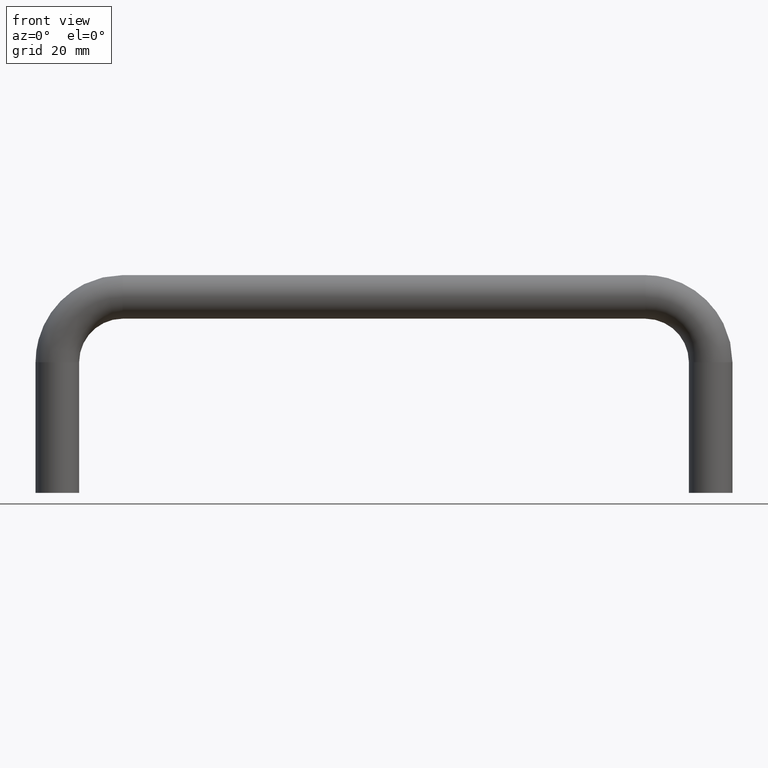
[diagram: clean part render]
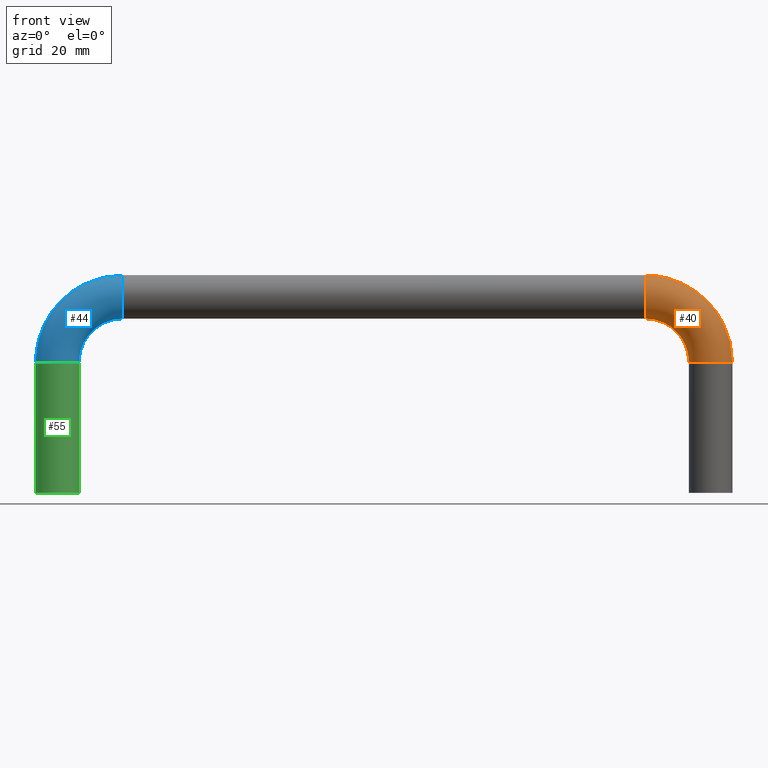
[diagram: same view with three faces highlighted in distinct colors, each labeled with its STEP entity id]
A machine part, front view with three faces highlighted in distinct colors.
Their STEP definitions:

[orange] entity #40 — the highlighted face is a freeform B-spline surface patch.
#40=ADVANCED_FACE('',(#59),#58,.T.);
#58=( BOUNDED_SURFACE() B_SPLINE_SURFACE( 3,3,((#240,#241,#242,#243,#244,#245,#246),(#247,#248,#249,#250,#251,#252,#253),(#254,#255,#256,#257,#258,#259,#260),(#261,#262,#263,#264,#265,#266,#267),(#268,#269,#270,#271,#272,#273,#274),(#275,#276,#277,#278,#279,#280,#281),(#282,#283,#284,#285,#286,#287,#288)), .UNSPECIFIED.,.F.,.F.,.F.) B_SPLINE_SURFACE_WITH_KNOTS((4,1,1,1,4),(4,1,1,1,4),(0.00000000000E+00,2.50000000000E-01,5.00000000000E-01,7.50000000000E-01,1.00000000000E+00),(0.00000000000E+00,2.49559115838E-01,5.00000000000E-01,7.50440884162E-01,1.00000000000E+00), .UNSPECIFIED. ) GEOMETRIC_REPRESENTATION_ITEM() RATIONAL_B_SPLINE_SURFACE(((1.00000000000E+00,1.00000000000E+00,1.00000000000E+00,1.00000000000E+00,1.00000000000E+00,1.00000000000E+00,1.00000000000E+00),(1.00000000000E+00,1.00000000000E+00,1.00000000000E+00,1.00000000000E+00,1.00000000000E+00,1.00000000000E+00,1.00000000000E+00),(1.00000000000E+00,1.00000000000E+00,1.00000000000E+00,1.00000000000E+00,1.00000000000E+00,1.00000000000E+00,1.00000000000E+00),(1.00000000000E+00,1.00000000000E+00,1.00000000000E+00,1.00000000000E+00,1.00000000000E+00,1.00000000000E+00,1.00000000000E+00),(1.00000000000E+00,1.00000000000E+00,1.00000000000E+00,1.00000000000E+00,1.00000000000E+00,1.00000000000E+00,1.00000000000E+00),(1.00000000000E+00,1.00000000000E+00,1.00000000000E+00,1.00000000000E+00,1.00000000000E+00,1.00000000000E+00,1.00000000000E+00),(1.00000000000E+00,1.00000000000E+00,1.00000000000E+00,1.00000000000E+00,1.00000000000E+00,1.00000000000E+00,1.00000000000E+00))) REPRESENTATION_ITEM('') SURFACE() );
#59=FACE_OUTER_BOUND('',#289,.T.);
#240=CARTESIAN_POINT('',(5.59999999995E+01,-4.89842541529E-16,-8.00000000000E+00));
#241=CARTESIAN_POINT('',(5.59999999995E+01,-4.89842541529E-16,-6.95464912813E+00));
#242=CARTESIAN_POINT('',(5.55842536145E+01,-4.89842541529E-16,-4.86085404799E+00));
#243=CARTESIAN_POINT('',(5.38046917398E+01,-4.89842541529E-16,-2.19530825965E+00));
#244=CARTESIAN_POINT('',(5.11391459515E+01,-4.89842541529E-16,-4.15746385008E-01));
#245=CARTESIAN_POINT('',(4.90453508714E+01,-4.89842541529E-16,3.55271367880E-15));
#246=CARTESIAN_POINT('',(4.79999999995E+01,-4.89842541529E-16,3.55271367880E-15));
#247=CARTESIAN_POINT('',(5.59947818338E+01,-1.04653676220E+00,-8.00000000000E+00));
#248=CARTESIAN_POINT('',(5.59947818338E+01,-1.04653676220E+00,-6.93760535475E+00));
#249=CARTESIAN_POINT('',(5.55786726132E+01,-1.04653676220E+00,-4.87116173382E+00));
#250=CARTESIAN_POINT('',(5.38031329626E+01,-1.04653676220E+00,-2.19686703690E+00));
#251=CARTESIAN_POINT('',(5.11288382657E+01,-1.04653676220E+00,-4.21327386263E-01));
#252=CARTESIAN_POINT('',(4.90623946448E+01,-1.04653676220E+00,-5.21816571468E-03));
#253=CARTESIAN_POINT('',(4.79999999995E+01,-1.04653676220E+00,-5.21816571469E-03));
#254=CARTESIAN_POINT('',(5.68649211604E+01,-3.13518975623E+00,-8.00000000000E+00));
#255=CARTESIAN_POINT('',(5.68649211604E+01,-3.13518975623E+00,-6.80156103731E+00));
#256=CARTESIAN_POINT('',(5.64027930667E+01,-3.13518975623E+00,-4.54013730411E+00));
#257=CARTESIAN_POINT('',(5.44373021201E+01,-3.13518975623E+00,-1.56269787944E+00));
#258=CARTESIAN_POINT('',(5.14598626954E+01,-3.13518975623E+00,4.02793067178E-01));
#259=CARTESIAN_POINT('',(4.91984389622E+01,-3.13518975623E+00,8.64921160933E-01));
#260=CARTESIAN_POINT('',(4.79999999995E+01,-3.13518975623E+00,8.64921160933E-01));
#261=CARTESIAN_POINT('',(5.99999999995E+01,-4.43641415899E+00,-8.00000000000E+00));
#262=CARTESIAN_POINT('',(5.99999999995E+01,-4.43641415899E+00,-6.43197369220E+00));
#263=CARTESIAN_POINT('',(5.93763804220E+01,-4.43641415899E+00,-3.29128107198E+00));
#264=CARTESIAN_POINT('',(5.67070376100E+01,-4.43641415899E+00,7.07037610521E-01));
#265=CARTESIAN_POINT('',(5.27087189275E+01,-4.43641415899E+00,3.37638042249E+00));
#266=CARTESIAN_POINT('',(4.95680263073E+01,-4.43641415899E+00,4.00000000000E+00));
#267=CARTESIAN_POINT('',(4.79999999995E+01,-4.43641415899E+00,4.00000000000E+00));
#268=CARTESIAN_POINT('',(6.31350788386E+01,-3.13518975623E+00,-8.00000000000E+00));
#269=CARTESIAN_POINT('',(6.31350788386E+01,-3.13518975623E+00,-6.06238634709E+00));
#270=CARTESIAN_POINT('',(6.23499677773E+01,-3.13518975623E+00,-2.04242483986E+00));
#271=CARTESIAN_POINT('',(5.89767731000E+01,-3.13518975623E+00,2.97677310048E+00));
#272=CARTESIAN_POINT('',(5.39575751596E+01,-3.13518975623E+00,6.34996777780E+00));
#273=CARTESIAN_POINT('',(4.99376136524E+01,-3.13518975623E+00,7.13507883907E+00));
#274=CARTESIAN_POINT('',(4.79999999995E+01,-3.13518975623E+00,7.13507883907E+00));
#275=CARTESIAN_POINT('',(6.40052181652E+01,-1.04653676220E+00,-8.00000000000E+00));
#276=CARTESIAN_POINT('',(6.40052181652E+01,-1.04653676220E+00,-5.92634202965E+00));
#277=CARTESIAN_POINT('',(6.31740882307E+01,-1.04653676220E+00,-1.71140041015E+00));
#278=CARTESIAN_POINT('',(5.96109422574E+01,-1.04653676219E+00,3.61094225795E+00));
#279=CARTESIAN_POINT('',(5.42885995894E+01,-1.04653676220E+00,7.17408823124E+00));
#280=CARTESIAN_POINT('',(5.00736579698E+01,-1.04653676220E+00,8.00521816571E+00));
#281=CARTESIAN_POINT('',(4.79999999995E+01,-1.04653676220E+00,8.00521816571E+00));
#282=CARTESIAN_POINT('',(6.39999999995E+01,0.00000000000E+00,-8.00000000000E+00));
#283=CARTESIAN_POINT('',(6.39999999995E+01,0.00000000000E+00,-5.90929825627E+00));
#284=CARTESIAN_POINT('',(6.31685072295E+01,0.00000000000E+00,-1.72170809598E+00));
#285=CARTESIAN_POINT('',(5.96093834802E+01,0.00000000000E+00,3.60938348069E+00));
#286=CARTESIAN_POINT('',(5.42782919035E+01,0.00000000000E+00,7.16850722998E+00));
#287=CARTESIAN_POINT('',(5.00907017432E+01,0.00000000000E+00,8.00000000000E+00));
#288=CARTESIAN_POINT('',(4.79999999995E+01,0.00000000000E+00,8.00000000000E+00));
#289=EDGE_LOOP('',(#484,#485,#486,#487));
#484=ORIENTED_EDGE('',*,*,#552,.F.);
#485=ORIENTED_EDGE('',*,*,#553,.F.);
#486=ORIENTED_EDGE('',*,*,#554,.T.);
#487=ORIENTED_EDGE('',*,*,#555,.T.);
#552=EDGE_CURVE('',#586,#587,#588,.T.);
#553=EDGE_CURVE('',#594,#586,#595,.T.);
#554=EDGE_CURVE('',#594,#601,#602,.T.);
#555=EDGE_CURVE('',#601,#587,#608,.T.);
#586=VERTEX_POINT('',#810);
#587=VERTEX_POINT('',#811);
#588=CIRCLE('',#815,4.00000000000E+00);
#594=VERTEX_POINT('',#816);
#595=CIRCLE('',#820,8.00000000000E+00);
#601=VERTEX_POINT('',#821);
#602=CIRCLE('',#825,4.00000000000E+00);
#608=(BOUNDED_CURVE() B_SPLINE_CURVE(3,(#826,#827,#828,#829,#830,#831,#832),.UNSPECIFIED.,.F.,.F.) B_SPLINE_CURVE_WITH_KNOTS((4,1,1,1,4),(1.57079632680E+00,2.05431411377E+00,2.35619449020E+00,2.65807486662E+00,3.14159265359E+00),.UNSPECIFIED.) CURVE() GEOMETRIC_REPRESENTATION_ITEM() RATIONAL_B_SPLINE_CURVE((1.00000000000E+00,1.00000000000E+00,1.00000000000E+00,1.00000000000E+00,1.00000000000E+00,1.00000000000E+00,1.00000000000E+00)) REPRESENTATION_ITEM('') );
#810=CARTESIAN_POINT('',(4.79999999995E+01,4.44089209850E-16,5.32907051820E-15));
#811=CARTESIAN_POINT('',(4.79999999995E+01,0.00000000000E+00,8.00000000000E+00));
#812=CARTESIAN_POINT('',(4.79999999995E+01,0.00000000000E+00,4.00000000000E+00));
#813=DIRECTION('',(-1.00000000000E+00,0.00000000000E+00,0.00000000000E+00));
#814=DIRECTION('',(-0.00000000000E+00,-1.11022302463E-16,1.00000000000E+00));
#815=AXIS2_PLACEMENT_3D('',#812,#813,#814);
#816=CARTESIAN_POINT('',(5.59999999995E+01,4.44089209850E-16,-8.00000000000E+00));
#817=CARTESIAN_POINT('',(4.79999999995E+01,-4.89842541529E-16,-8.00000000000E+00));
#818=DIRECTION('',(1.81712644615E-45,-1.00000000000E+00,6.84534503202E-33));
#819=DIRECTION('',(-1.00000000000E+00,-0.00000000000E+00,2.65454325188E-13));
#820=AXIS2_PLACEMENT_3D('',#817,#818,#819);
#821=CARTESIAN_POINT('',(6.39999999995E+01,0.00000000000E+00,-8.00000000000E+00));
#822=CARTESIAN_POINT('',(5.99999999995E+01,0.00000000000E+00,-8.00000000000E+00));
#823=DIRECTION('',(0.00000000000E+00,0.00000000000E+00,1.00000000000E+00));
#824=DIRECTION('',(1.00000000000E+00,-1.11022302463E-16,-0.00000000000E+00));
#825=AXIS2_PLACEMENT_3D('',#822,#823,#824);
#826=CARTESIAN_POINT('',(6.39999999995E+01,0.00000000000E+00,-7.99999999996E+00));
#827=CARTESIAN_POINT('',(6.40052129147E+01,0.00000000000E+00,-5.41993676170E+00));
#828=CARTESIAN_POINT('',(6.29669603454E+01,0.00000000000E+00,-1.24343635425E+00));
#829=CARTESIAN_POINT('',(5.94874213830E+01,0.00000000000E+00,3.48742138358E+00));
#830=CARTESIAN_POINT('',(5.47565636451E+01,0.00000000000E+00,6.96696034596E+00));
#831=CARTESIAN_POINT('',(5.05800632377E+01,0.00000000000E+00,8.00521291529E+00));
#832=CARTESIAN_POINT('',(4.79999999994E+01,0.00000000000E+00,8.00000000000E+00));

[blue] entity #44 — the highlighted face is a freeform B-spline surface patch.
#44=ADVANCED_FACE('',(#100),#99,.T.);
#99=( BOUNDED_SURFACE() B_SPLINE_SURFACE( 3,3,((#323,#324,#325,#326,#327,#328,#329),(#330,#331,#332,#333,#334,#335,#336),(#337,#338,#339,#340,#341,#342,#343),(#344,#345,#346,#347,#348,#349,#350),(#351,#352,#353,#354,#355,#356,#357),(#358,#359,#360,#361,#362,#363,#364),(#365,#366,#367,#368,#369,#370,#371)), .UNSPECIFIED.,.F.,.F.,.F.) B_SPLINE_SURFACE_WITH_KNOTS((4,1,1,1,4),(4,1,1,1,4),(0.00000000000E+00,2.50000000000E-01,5.00000000000E-01,7.50000000000E-01,1.00000000000E+00),(0.00000000000E+00,2.49559115838E-01,5.00000000000E-01,7.50440884162E-01,1.00000000000E+00), .UNSPECIFIED. ) GEOMETRIC_REPRESENTATION_ITEM() RATIONAL_B_SPLINE_SURFACE(((1.00000000000E+00,1.00000000000E+00,1.00000000000E+00,1.00000000000E+00,1.00000000000E+00,1.00000000000E+00,1.00000000000E+00),(1.00000000000E+00,1.00000000000E+00,1.00000000000E+00,1.00000000000E+00,1.00000000000E+00,1.00000000000E+00,1.00000000000E+00),(1.00000000000E+00,1.00000000000E+00,1.00000000000E+00,1.00000000000E+00,1.00000000000E+00,1.00000000000E+00,1.00000000000E+00),(1.00000000000E+00,1.00000000000E+00,1.00000000000E+00,1.00000000000E+00,1.00000000000E+00,1.00000000000E+00,1.00000000000E+00),(1.00000000000E+00,1.00000000000E+00,1.00000000000E+00,1.00000000000E+00,1.00000000000E+00,1.00000000000E+00,1.00000000000E+00),(1.00000000000E+00,1.00000000000E+00,1.00000000000E+00,1.00000000000E+00,1.00000000000E+00,1.00000000000E+00,1.00000000000E+00),(1.00000000000E+00,1.00000000000E+00,1.00000000000E+00,1.00000000000E+00,1.00000000000E+00,1.00000000000E+00,1.00000000000E+00))) REPRESENTATION_ITEM('') SURFACE() );
#100=FACE_OUTER_BOUND('',#372,.T.);
#323=CARTESIAN_POINT('',(-4.79999999995E+01,-4.89842541529E-16,0.00000000000E+00));
#324=CARTESIAN_POINT('',(-4.90453508714E+01,-4.89842541529E-16,-9.28458085406E-16));
#325=CARTESIAN_POINT('',(-5.11391459515E+01,-4.89842541529E-16,-4.15746385008E-01));
#326=CARTESIAN_POINT('',(-5.38046917398E+01,-4.89842541529E-16,-2.19530825965E+00));
#327=CARTESIAN_POINT('',(-5.55842536145E+01,-4.89842541529E-16,-4.86085404799E+00));
#328=CARTESIAN_POINT('',(-5.59999999995E+01,-4.89842541529E-16,-6.95464912813E+00));
#329=CARTESIAN_POINT('',(-5.59999999995E+01,-4.89842541529E-16,-8.00000000000E+00));
#330=CARTESIAN_POINT('',(-4.79999999995E+01,-1.04653676220E+00,-5.21816571468E-03));
#331=CARTESIAN_POINT('',(-4.90623946448E+01,-1.04653676220E+00,-5.21816571468E-03));
#332=CARTESIAN_POINT('',(-5.11288382657E+01,-1.04653676220E+00,-4.21327386263E-01));
#333=CARTESIAN_POINT('',(-5.38031329626E+01,-1.04653676220E+00,-2.19686703690E+00));
#334=CARTESIAN_POINT('',(-5.55786726132E+01,-1.04653676220E+00,-4.87116173382E+00));
#335=CARTESIAN_POINT('',(-5.59947818338E+01,-1.04653676220E+00,-6.93760535475E+00));
#336=CARTESIAN_POINT('',(-5.59947818338E+01,-1.04653676220E+00,-8.00000000000E+00));
#337=CARTESIAN_POINT('',(-4.79999999995E+01,-3.13518975623E+00,8.64921160933E-01));
#338=CARTESIAN_POINT('',(-4.91984389622E+01,-3.13518975623E+00,8.64921160933E-01));
#339=CARTESIAN_POINT('',(-5.14598626954E+01,-3.13518975623E+00,4.02793067178E-01));
#340=CARTESIAN_POINT('',(-5.44373021201E+01,-3.13518975623E+00,-1.56269787944E+00));
#341=CARTESIAN_POINT('',(-5.64027930667E+01,-3.13518975623E+00,-4.54013730411E+00));
#342=CARTESIAN_POINT('',(-5.68649211604E+01,-3.13518975623E+00,-6.80156103731E+00));
#343=CARTESIAN_POINT('',(-5.68649211604E+01,-3.13518975623E+00,-8.00000000000E+00));
#344=CARTESIAN_POINT('',(-4.79999999995E+01,-4.43641415899E+00,4.00000000000E+00));
#345=CARTESIAN_POINT('',(-4.95680263073E+01,-4.43641415899E+00,4.00000000000E+00));
#346=CARTESIAN_POINT('',(-5.27087189275E+01,-4.43641415899E+00,3.37638042249E+00));
#347=CARTESIAN_POINT('',(-5.67070376100E+01,-4.43641415899E+00,7.07037610521E-01));
#348=CARTESIAN_POINT('',(-5.93763804220E+01,-4.43641415899E+00,-3.29128107198E+00));
#349=CARTESIAN_POINT('',(-5.99999999995E+01,-4.43641415899E+00,-6.43197369220E+00));
#350=CARTESIAN_POINT('',(-5.99999999995E+01,-4.43641415899E+00,-8.00000000000E+00));
#351=CARTESIAN_POINT('',(-4.79999999995E+01,-3.13518975623E+00,7.13507883907E+00));
#352=CARTESIAN_POINT('',(-4.99376136524E+01,-3.13518975623E+00,7.13507883907E+00));
#353=CARTESIAN_POINT('',(-5.39575751596E+01,-3.13518975623E+00,6.34996777780E+00));
#354=CARTESIAN_POINT('',(-5.89767731000E+01,-3.13518975623E+00,2.97677310048E+00));
#355=CARTESIAN_POINT('',(-6.23499677773E+01,-3.13518975623E+00,-2.04242483986E+00));
#356=CARTESIAN_POINT('',(-6.31350788386E+01,-3.13518975623E+00,-6.06238634709E+00));
#357=CARTESIAN_POINT('',(-6.31350788386E+01,-3.13518975623E+00,-8.00000000000E+00));
#358=CARTESIAN_POINT('',(-4.79999999995E+01,-1.04653676220E+00,8.00521816571E+00));
#359=CARTESIAN_POINT('',(-5.00736579698E+01,-1.04653676220E+00,8.00521816571E+00));
#360=CARTESIAN_POINT('',(-5.42885995894E+01,-1.04653676220E+00,7.17408823124E+00));
#361=CARTESIAN_POINT('',(-5.96109422574E+01,-1.04653676219E+00,3.61094225795E+00));
#362=CARTESIAN_POINT('',(-6.31740882307E+01,-1.04653676220E+00,-1.71140041015E+00));
#363=CARTESIAN_POINT('',(-6.40052181652E+01,-1.04653676220E+00,-5.92634202965E+00));
#364=CARTESIAN_POINT('',(-6.40052181652E+01,-1.04653676220E+00,-8.00000000000E+00));
#365=CARTESIAN_POINT('',(-4.79999999995E+01,0.00000000000E+00,8.00000000000E+00));
#366=CARTESIAN_POINT('',(-5.00907017432E+01,0.00000000000E+00,8.00000000000E+00));
#367=CARTESIAN_POINT('',(-5.42782919035E+01,0.00000000000E+00,7.16850722998E+00));
#368=CARTESIAN_POINT('',(-5.96093834802E+01,0.00000000000E+00,3.60938348069E+00));
#369=CARTESIAN_POINT('',(-6.31685072295E+01,0.00000000000E+00,-1.72170809598E+00));
#370=CARTESIAN_POINT('',(-6.39999999995E+01,0.00000000000E+00,-5.90929825627E+00));
#371=CARTESIAN_POINT('',(-6.39999999995E+01,0.00000000000E+00,-8.00000000000E+00));
#372=EDGE_LOOP('',(#498,#499,#500,#501));
#498=ORIENTED_EDGE('',*,*,#564,.F.);
#499=ORIENTED_EDGE('',*,*,#565,.F.);
#500=ORIENTED_EDGE('',*,*,#566,.T.);
#501=ORIENTED_EDGE('',*,*,#567,.T.);
#564=EDGE_CURVE('',#668,#669,#670,.T.);
#565=EDGE_CURVE('',#676,#668,#677,.T.);
#566=EDGE_CURVE('',#676,#683,#684,.T.);
#567=EDGE_CURVE('',#683,#669,#690,.T.);
#668=VERTEX_POINT('',#871);
#669=VERTEX_POINT('',#872);
#670=CIRCLE('',#876,4.00000000000E+00);
#676=VERTEX_POINT('',#877);
#677=CIRCLE('',#881,8.00000000000E+00);
#683=VERTEX_POINT('',#882);
#684=CIRCLE('',#886,4.00000000000E+00);
#690=(BOUNDED_CURVE() B_SPLINE_CURVE(3,(#887,#888,#889,#890,#891,#892,#893),.UNSPECIFIED.,.F.,.F.) B_SPLINE_CURVE_WITH_KNOTS((4,1,1,1,4),(3.14159265359E+00,3.62511044056E+00,3.92699081698E+00,4.22887119341E+00,4.71238898038E+00),.UNSPECIFIED.) CURVE() GEOMETRIC_REPRESENTATION_ITEM() RATIONAL_B_SPLINE_CURVE((1.00000000000E+00,1.00000000000E+00,1.00000000000E+00,1.00000000000E+00,1.00000000000E+00,1.00000000000E+00,1.00000000000E+00)) REPRESENTATION_ITEM('') );
#871=CARTESIAN_POINT('',(-5.59999999995E+01,4.44089209850E-16,-8.00000000000E+00));
#872=CARTESIAN_POINT('',(-6.39999999995E+01,0.00000000000E+00,-8.00000000000E+00));
#873=CARTESIAN_POINT('',(-5.99999999995E+01,0.00000000000E+00,-8.00000000000E+00));
#874=DIRECTION('',(2.22044604925E-16,1.10555925538E-32,-1.00000000000E+00));
#875=DIRECTION('',(-1.00000000000E+00,-1.11022302463E-16,-2.22044604925E-16));
#876=AXIS2_PLACEMENT_3D('',#873,#874,#875);
#877=CARTESIAN_POINT('',(-4.79999999995E+01,4.44089209850E-16,-8.88178419700E-16));
#878=CARTESIAN_POINT('',(-4.79999999995E+01,-4.89842541529E-16,-8.00000000000E+00));
#879=DIRECTION('',(0.00000000000E+00,-1.00000000000E+00,0.00000000000E+00));
#880=DIRECTION('',(-2.64677169071E-13,-0.00000000000E+00,-1.00000000000E+00));
#881=AXIS2_PLACEMENT_3D('',#878,#879,#880);
#882=CARTESIAN_POINT('',(-4.79999999995E+01,0.00000000000E+00,8.00000000000E+00));
#883=CARTESIAN_POINT('',(-4.79999999995E+01,0.00000000000E+00,4.00000000000E+00));
#884=DIRECTION('',(-1.00000000000E+00,-1.35963107344E-32,-1.50949372273E-48));
#885=DIRECTION('',(-0.00000000000E+00,-1.11022302462E-16,1.00000000000E+00));
#886=AXIS2_PLACEMENT_3D('',#883,#884,#885);
#887=CARTESIAN_POINT('',(-4.79999999994E+01,0.00000000000E+00,8.00000000000E+00));
#888=CARTESIAN_POINT('',(-5.05800632377E+01,0.00000000000E+00,8.00521291529E+00));
#889=CARTESIAN_POINT('',(-5.47565636451E+01,0.00000000000E+00,6.96696034596E+00));
#890=CARTESIAN_POINT('',(-5.94874213830E+01,0.00000000000E+00,3.48742138358E+00));
#891=CARTESIAN_POINT('',(-6.29669603454E+01,0.00000000000E+00,-1.24343635425E+00));
#892=CARTESIAN_POINT('',(-6.40052129147E+01,0.00000000000E+00,-5.41993676170E+00));
#893=CARTESIAN_POINT('',(-6.39999999995E+01,0.00000000000E+00,-7.99999999996E+00));

[green] entity #55 — the highlighted cylindrical surface (edge-blend (fillet) strip) has radius 4 mm, axis along (-0, -0, 1).
#55=ADVANCED_FACE('',(#211),#210,.T.);
#210=CYLINDRICAL_SURFACE('',#472,4.00000000000E+00);
#211=FACE_OUTER_BOUND('',#473,.T.);
#469=CARTESIAN_POINT('',(-5.99999999995E+01,0.00000000000E+00,-2.00000000000E+01));
#470=DIRECTION('',(-1.22464679914E-16,-0.00000000000E+00,1.00000000000E+00));
#471=DIRECTION('',(1.00000000000E+00,-1.22464679915E-16,1.22464679914E-16));
#472=AXIS2_PLACEMENT_3D('',#469,#470,#471);
#473=EDGE_LOOP('',(#540,#541,#542,#543));
#540=ORIENTED_EDGE('',*,*,#571,.T.);
#541=ORIENTED_EDGE('',*,*,#582,.T.);
#542=ORIENTED_EDGE('',*,*,#564,.T.);
#543=ORIENTED_EDGE('',*,*,#583,.F.);
#564=EDGE_CURVE('',#668,#669,#670,.T.);
#571=EDGE_CURVE('',#709,#708,#716,.T.);
#582=EDGE_CURVE('',#708,#668,#786,.T.);
#583=EDGE_CURVE('',#709,#669,#792,.T.);
#668=VERTEX_POINT('',#871);
#669=VERTEX_POINT('',#872);
#670=CIRCLE('',#876,4.00000000000E+00);
#708=VERTEX_POINT('',#902);
#709=VERTEX_POINT('',#903);
#716=CIRCLE('',#911,4.00000000000E+00);
#786=(BOUNDED_CURVE() B_SPLINE_CURVE(1,(#944,#945),.UNSPECIFIED.,.F.,.F.) B_SPLINE_CURVE_WITH_KNOTS((2,2),(8.33333328360E-02,9.16666665505E-01),.UNSPECIFIED.) CURVE() GEOMETRIC_REPRESENTATION_ITEM() RATIONAL_B_SPLINE_CURVE((1.00000000000E+00,1.00000000000E+00)) REPRESENTATION_ITEM('') );
#792=(BOUNDED_CURVE() B_SPLINE_CURVE(1,(#946,#947),.UNSPECIFIED.,.F.,.F.) B_SPLINE_CURVE_WITH_KNOTS((2,2),(8.33333333333E-02,9.16666666667E-01),.UNSPECIFIED.) CURVE() GEOMETRIC_REPRESENTATION_ITEM() RATIONAL_B_SPLINE_CURVE((7.50000000000E-01,7.50000000000E-01)) REPRESENTATION_ITEM('') );
#871=CARTESIAN_POINT('',(-5.59999999995E+01,4.44089209850E-16,-8.00000000000E+00));
#872=CARTESIAN_POINT('',(-6.39999999995E+01,0.00000000000E+00,-8.00000000000E+00));
#873=CARTESIAN_POINT('',(-5.99999999995E+01,0.00000000000E+00,-8.00000000000E+00));
#874=DIRECTION('',(2.22044604925E-16,1.10555925538E-32,-1.00000000000E+00));
#875=DIRECTION('',(-1.00000000000E+00,-1.11022302463E-16,-2.22044604925E-16));
#876=AXIS2_PLACEMENT_3D('',#873,#874,#875);
#902=CARTESIAN_POINT('',(-5.59999999994E+01,8.88178419700E-16,-3.20000000000E+01));
#903=CARTESIAN_POINT('',(-6.39999999994E+01,-2.50306141554E-16,-3.20000000000E+01));
#908=CARTESIAN_POINT('',(-5.99999999994E+01,0.00000000000E+00,-3.20000000000E+01));
#909=DIRECTION('',(-4.19303811868E-48,2.26605178906E-32,1.00000000000E+00));
#910=DIRECTION('',(-1.00000000000E+00,-1.85037170771E-16,-0.00000000000E+00));
#911=AXIS2_PLACEMENT_3D('',#908,#909,#910);
#944=CARTESIAN_POINT('',(-5.59999999995E+01,-4.89858719659E-16,-3.20000000143E+01));
#945=CARTESIAN_POINT('',(-5.59999999995E+01,-4.89858719659E-16,-8.00000003347E+00));
#946=CARTESIAN_POINT('',(-6.39999999995E+01,4.44089209850E-16,-3.20000000000E+01));
#947=CARTESIAN_POINT('',(-6.39999999995E+01,4.44089209850E-16,-8.00000000000E+00));